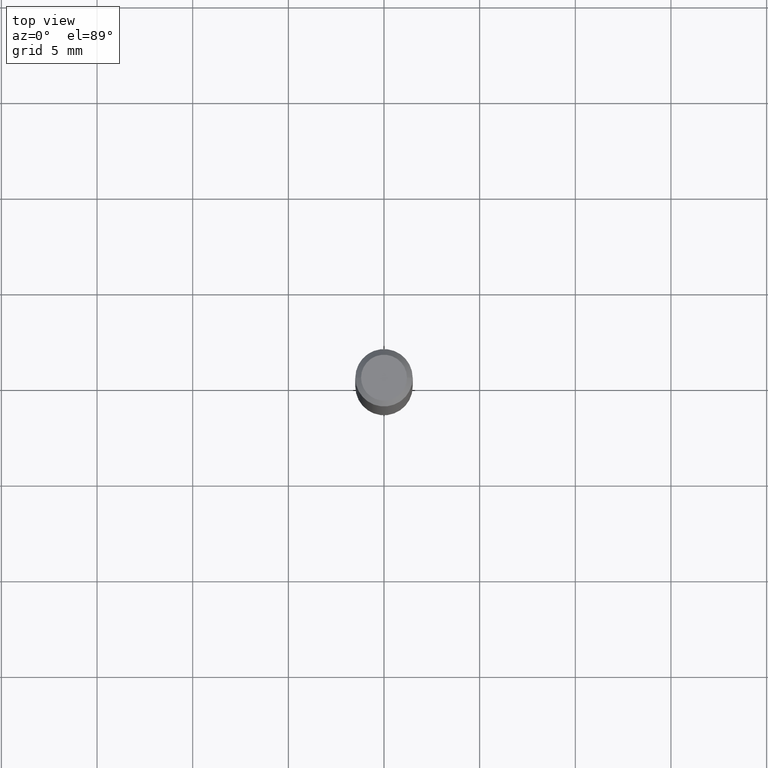
[diagram: clean part render]
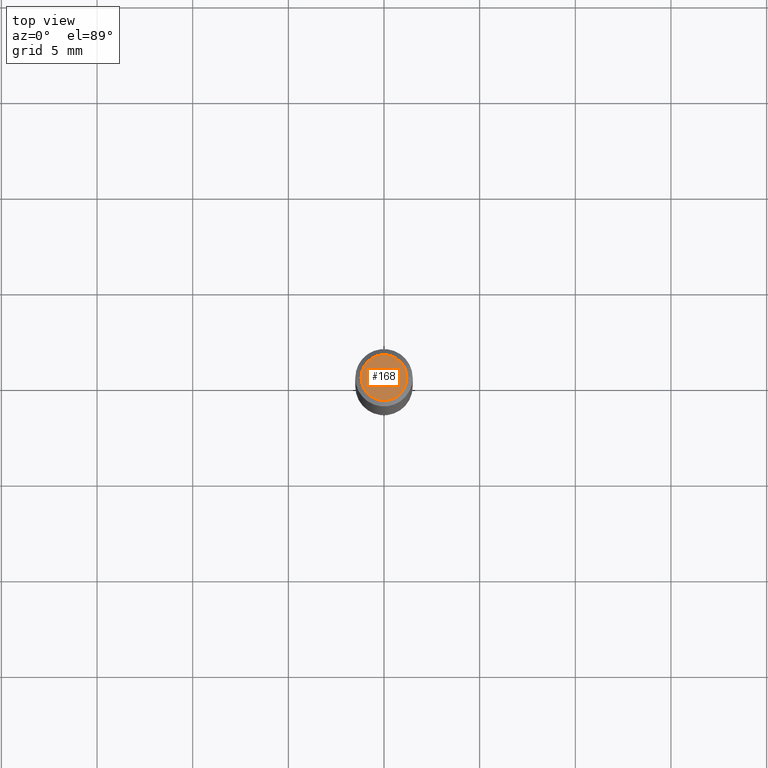
[diagram: same view with one face highlighted and labeled with its STEP entity id]
A machine part, top view. The second image highlights one B-rep face of the part: STEP entity #168.
In plain terms, the highlighted planar face has unit normal (0, -0, -1).
Its self-contained STEP definition (entity closure, byte-faithful):
#23 = CARTESIAN_POINT ( 'NONE',  ( 8.265746106709734507E-48, -1.180129479067563789E-33, -3.380025165646692144E-19 ) ) ;
#28 = FACE_OUTER_BOUND ( 'NONE', #319, .T. ) ;
#39 = AXIS2_PLACEMENT_3D ( 'NONE', #146, #416, #376 ) ;
#63 = CARTESIAN_POINT ( 'NONE',  ( -0.04724000000000000421, 3.504923541997677355E-16, -3.380025165670481712E-19 ) ) ;
#71 = ORIENTED_EDGE ( 'NONE', *, *, #315, .T. ) ;
#75 = DIRECTION ( 'NONE',  ( 1.000000000000000000, -6.982962677686266711E-15, 4.876185090822587894E-29 ) ) ;
#96 = VERTEX_POINT ( 'NONE', #182 ) ;
#106 = CIRCLE ( 'NONE', #412, 0.04724000000000000421 ) ;
#130 = ORIENTED_EDGE ( 'NONE', *, *, #281, .T. ) ;
#146 = CARTESIAN_POINT ( 'NONE',  ( 4.132873053354867254E-48, -5.900647395337818946E-34, -1.690012582823346072E-19 ) ) ;
#150 = CARTESIAN_POINT ( 'NONE',  ( 8.265746106709734507E-48, -1.180129479067563789E-33, -3.380025165646692144E-19 ) ) ;
#158 = DIRECTION ( 'NONE',  ( -2.445468806185136597E-29, 3.491481338843145583E-15, 1.000000000000000000 ) ) ;
#168 = ADVANCED_FACE ( 'NONE', ( #28 ), #188, .F. ) ;
#182 = CARTESIAN_POINT ( 'NONE',  ( 0.04724000000000000421, -3.852183633974369345E-16, -3.380025165621689721E-19 ) ) ;
#188 = PLANE ( 'NONE',  #39 ) ;
#217 = DIRECTION ( 'NONE',  ( -2.445468806185136597E-29, 3.491481338843145583E-15, 1.000000000000000000 ) ) ;
#265 = DIRECTION ( 'NONE',  ( 1.000000000000000000, -6.982962677686266711E-15, 4.876185090822587894E-29 ) ) ;
#281 = EDGE_CURVE ( 'NONE', #96, #287, #106, .T. ) ;
#283 = CIRCLE ( 'NONE', #303, 0.04724000000000000421 ) ;
#287 = VERTEX_POINT ( 'NONE', #63 ) ;
#303 = AXIS2_PLACEMENT_3D ( 'NONE', #150, #217, #265 ) ;
#315 = EDGE_CURVE ( 'NONE', #287, #96, #283, .T. ) ;
#319 = EDGE_LOOP ( 'NONE', ( #71, #130 ) ) ;
#376 = DIRECTION ( 'NONE',  ( -1.000000000000000000, 6.982962677686265922E-15, -4.876176775795935793E-29 ) ) ;
#412 = AXIS2_PLACEMENT_3D ( 'NONE', #23, #158, #75 ) ;
#416 = DIRECTION ( 'NONE',  ( 2.438088387897960049E-29, -3.491481338843145188E-15, -1.000000000000000000 ) ) ;